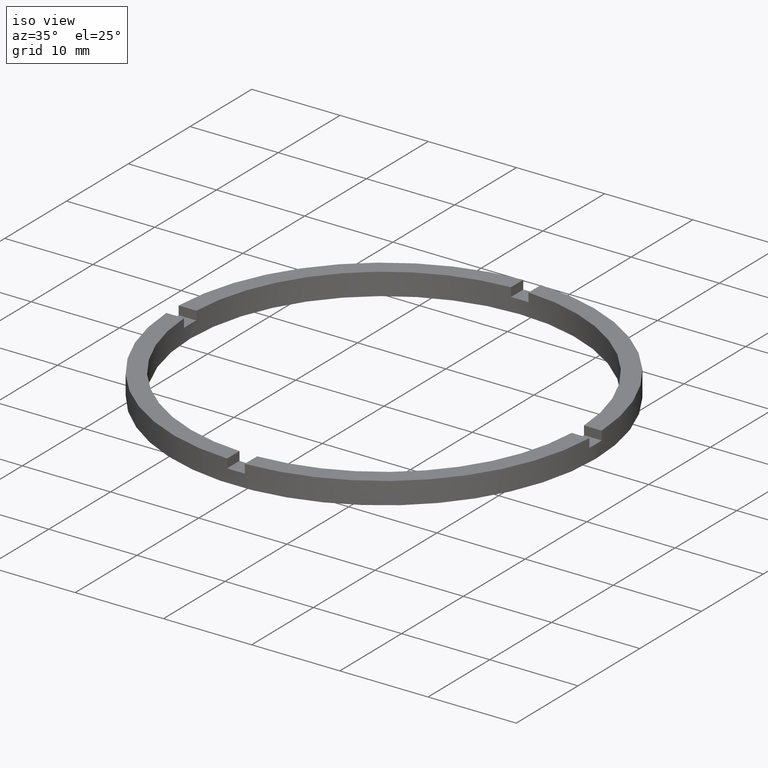
[diagram: clean part render]
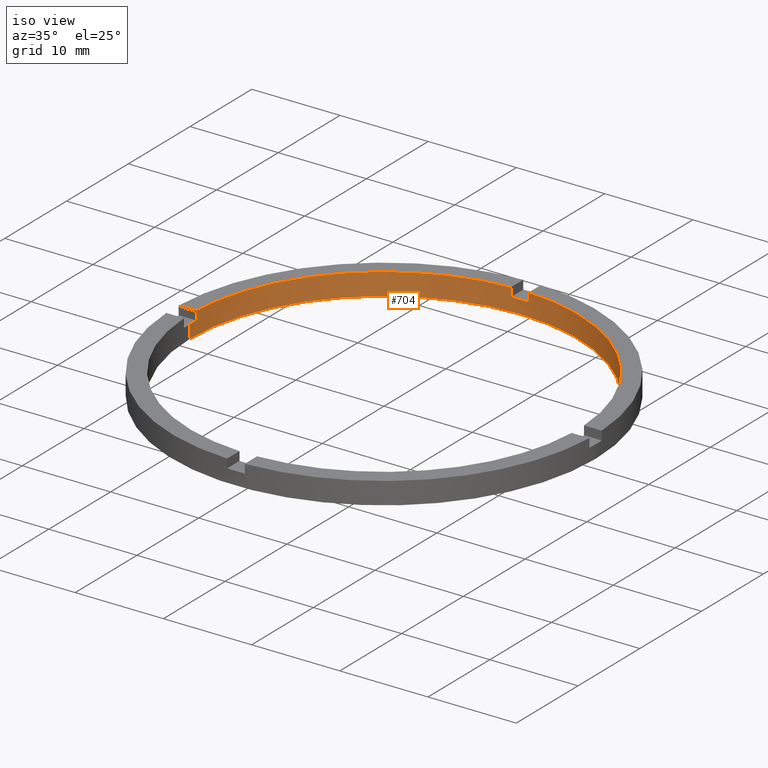
[diagram: same view with one face highlighted and labeled with its STEP entity id]
A machine part, iso view. The second image highlights one B-rep face of the part: STEP entity #704.
In plain terms, the highlighted cylindrical surface (partial cylindrical patch) has radius 22 mm, axis along (-0, -0, -1).
Its self-contained STEP definition (entity closure, byte-faithful):
#27 = CARTESIAN_POINT ( 'NONE',  ( -1.000000000000025535, 21.97726097583590388, 2.500000000000000000 ) ) ;
#29 = ORIENTED_EDGE ( 'NONE', *, *, #466, .F. ) ;
#30 = CARTESIAN_POINT ( 'NONE',  ( -21.97726097583591098, 0.9999999999999744649, 2.500000000000000000 ) ) ;
#31 = EDGE_CURVE ( 'NONE', #273, #410, #32, .T. ) ;
#32 = CIRCLE ( 'NONE', #208, 22.00000000000000000 ) ;
#33 = ORIENTED_EDGE ( 'NONE', *, *, #119, .T. ) ;
#56 = CIRCLE ( 'NONE', #388, 22.00000000000000000 ) ;
#74 = DIRECTION ( 'NONE',  ( 0.000000000000000000, 0.000000000000000000, 1.000000000000000000 ) ) ;
#77 = LINE ( 'NONE', #654, #333 ) ;
#88 = VECTOR ( 'NONE', #149, 1000.000000000000000 ) ;
#94 = EDGE_CURVE ( 'NONE', #395, #410, #299, .T. ) ;
#109 = LINE ( 'NONE', #323, #363 ) ;
#113 = LINE ( 'NONE', #159, #642 ) ;
#116 = DIRECTION ( 'NONE',  ( 0.000000000000000000, 0.000000000000000000, 1.000000000000000000 ) ) ;
#119 = EDGE_CURVE ( 'NONE', #140, #327, #573, .T. ) ;
#128 = EDGE_CURVE ( 'NONE', #321, #567, #56, .T. ) ;
#132 = VERTEX_POINT ( 'NONE', #408 ) ;
#137 = ORIENTED_EDGE ( 'NONE', *, *, #31, .T. ) ;
#140 = VERTEX_POINT ( 'NONE', #420 ) ;
#141 = ORIENTED_EDGE ( 'NONE', *, *, #613, .T. ) ;
#147 = CARTESIAN_POINT ( 'NONE',  ( 22.00000000000000000, 2.694222958124176809E-15, 1.500000000000000000 ) ) ;
#149 = DIRECTION ( 'NONE',  ( -0.000000000000000000, -0.000000000000000000, -1.000000000000000000 ) ) ;
#157 = DIRECTION ( 'NONE',  ( 1.000000000000000000, 0.000000000000000000, 0.000000000000000000 ) ) ;
#159 = CARTESIAN_POINT ( 'NONE',  ( -22.00000000000000000, 0.000000000000000000, 2.500000000000000000 ) ) ;
#169 = VERTEX_POINT ( 'NONE', #539 ) ;
#190 = CARTESIAN_POINT ( 'NONE',  ( -1.000000000000025535, 21.97726097583590388, 1.500000000000000000 ) ) ;
#197 = CARTESIAN_POINT ( 'NONE',  ( 21.97726097583591809, 0.9999999999998421263, 1.500000000000000000 ) ) ;
#198 = DIRECTION ( 'NONE',  ( 0.000000000000000000, 0.000000000000000000, 1.000000000000000000 ) ) ;
#205 = DIRECTION ( 'NONE',  ( 1.000000000000000000, 0.000000000000000000, 0.000000000000000000 ) ) ;
#208 = AXIS2_PLACEMENT_3D ( 'NONE', #778, #444, #281 ) ;
#211 = DIRECTION ( 'NONE',  ( 0.000000000000000000, -0.000000000000000000, 1.000000000000000000 ) ) ;
#244 = ORIENTED_EDGE ( 'NONE', *, *, #446, .F. ) ;
#249 = AXIS2_PLACEMENT_3D ( 'NONE', #498, #211, #157 ) ;
#267 = CARTESIAN_POINT ( 'NONE',  ( 0.000000000000000000, 0.000000000000000000, 2.500000000000000000 ) ) ;
#273 = VERTEX_POINT ( 'NONE', #27 ) ;
#281 = DIRECTION ( 'NONE',  ( 1.000000000000000000, 0.000000000000000000, 0.000000000000000000 ) ) ;
#286 = CARTESIAN_POINT ( 'NONE',  ( 0.000000000000000000, 0.000000000000000000, 1.500000000000000000 ) ) ;
#298 = CARTESIAN_POINT ( 'NONE',  ( 0.000000000000000000, 0.000000000000000000, 2.500000000000000000 ) ) ;
#299 = LINE ( 'NONE', #30, #310 ) ;
#309 = ORIENTED_EDGE ( 'NONE', *, *, #731, .T. ) ;
#310 = VECTOR ( 'NONE', #405, 1000.000000000000000 ) ;
#315 = CARTESIAN_POINT ( 'NONE',  ( 0.000000000000000000, 0.000000000000000000, 0.000000000000000000 ) ) ;
#316 = ORIENTED_EDGE ( 'NONE', *, *, #94, .F. ) ;
#320 = ORIENTED_EDGE ( 'NONE', *, *, #342, .F. ) ;
#321 = VERTEX_POINT ( 'NONE', #147 ) ;
#323 = CARTESIAN_POINT ( 'NONE',  ( -1.000000000000025979, 21.97726097583590743, 2.500000000000000000 ) ) ;
#324 = ORIENTED_EDGE ( 'NONE', *, *, #595, .F. ) ;
#327 = VERTEX_POINT ( 'NONE', #190 ) ;
#333 = VECTOR ( 'NONE', #744, 1000.000000000000000 ) ;
#336 = DIRECTION ( 'NONE',  ( 1.000000000000000000, 0.000000000000000000, 0.000000000000000000 ) ) ;
#340 = LINE ( 'NONE', #769, #88 ) ;
#342 = EDGE_CURVE ( 'NONE', #321, #132, #77, .T. ) ;
#346 = ORIENTED_EDGE ( 'NONE', *, *, #678, .F. ) ;
#363 = VECTOR ( 'NONE', #653, 1000.000000000000000 ) ;
#370 = FACE_OUTER_BOUND ( 'NONE', #664, .T. ) ;
#374 = CIRCLE ( 'NONE', #612, 22.00000000000000000 ) ;
#388 = AXIS2_PLACEMENT_3D ( 'NONE', #286, #116, #205 ) ;
#395 = VERTEX_POINT ( 'NONE', #679 ) ;
#405 = DIRECTION ( 'NONE',  ( 0.000000000000000000, 0.000000000000000000, 1.000000000000000000 ) ) ;
#408 = CARTESIAN_POINT ( 'NONE',  ( 22.00000000000000000, 2.694222958124176809E-15, 0.000000000000000000 ) ) ;
#410 = VERTEX_POINT ( 'NONE', #603 ) ;
#420 = CARTESIAN_POINT ( 'NONE',  ( 0.9999999999999735767, 21.97726097583590743, 1.500000000000000000 ) ) ;
#426 = CARTESIAN_POINT ( 'NONE',  ( -22.00000000000000000, 0.000000000000000000, 1.500000000000000000 ) ) ;
#427 = VERTEX_POINT ( 'NONE', #667 ) ;
#444 = DIRECTION ( 'NONE',  ( 0.000000000000000000, 0.000000000000000000, 1.000000000000000000 ) ) ;
#446 = EDGE_CURVE ( 'NONE', #140, #169, #608, .T. ) ;
#447 = DIRECTION ( 'NONE',  ( 0.000000000000000000, 0.000000000000000000, 1.000000000000000000 ) ) ;
#466 = EDGE_CURVE ( 'NONE', #668, #567, #340, .T. ) ;
#473 = EDGE_CURVE ( 'NONE', #395, #577, #631, .T. ) ;
#475 = DIRECTION ( 'NONE',  ( -0.000000000000000000, -0.000000000000000000, -1.000000000000000000 ) ) ;
#496 = CIRCLE ( 'NONE', #510, 22.00000000000000000 ) ;
#498 = CARTESIAN_POINT ( 'NONE',  ( 0.000000000000000000, 0.000000000000000000, 1.500000000000000000 ) ) ;
#510 = AXIS2_PLACEMENT_3D ( 'NONE', #298, #74, #729 ) ;
#514 = DIRECTION ( 'NONE',  ( 1.000000000000000000, 0.000000000000000000, 0.000000000000000000 ) ) ;
#515 = AXIS2_PLACEMENT_3D ( 'NONE', #658, #447, #514 ) ;
#520 = CARTESIAN_POINT ( 'NONE',  ( 0.9999999999999740208, 21.97726097583591098, 2.500000000000000000 ) ) ;
#539 = CARTESIAN_POINT ( 'NONE',  ( 0.9999999999999735767, 21.97726097583590743, 2.500000000000000000 ) ) ;
#565 = CARTESIAN_POINT ( 'NONE',  ( 21.97726097583591809, 0.9999999999998421263, 2.500000000000000000 ) ) ;
#567 = VERTEX_POINT ( 'NONE', #197 ) ;
#573 = CIRCLE ( 'NONE', #249, 22.00000000000000000 ) ;
#577 = VERTEX_POINT ( 'NONE', #426 ) ;
#584 = ORIENTED_EDGE ( 'NONE', *, *, #473, .T. ) ;
#595 = EDGE_CURVE ( 'NONE', #132, #427, #374, .T. ) ;
#603 = CARTESIAN_POINT ( 'NONE',  ( -21.97726097583591098, 0.9999999999999744649, 2.500000000000000000 ) ) ;
#608 = LINE ( 'NONE', #520, #618 ) ;
#612 = AXIS2_PLACEMENT_3D ( 'NONE', #315, #198, #336 ) ;
#613 = EDGE_CURVE ( 'NONE', #577, #427, #113, .T. ) ;
#618 = VECTOR ( 'NONE', #720, 1000.000000000000000 ) ;
#629 = DIRECTION ( 'NONE',  ( -1.000000000000000000, 0.000000000000000000, 0.000000000000000000 ) ) ;
#631 = CIRCLE ( 'NONE', #515, 22.00000000000000000 ) ;
#642 = VECTOR ( 'NONE', #475, 1000.000000000000000 ) ;
#645 = CYLINDRICAL_SURFACE ( 'NONE', #759, 22.00000000000000000 ) ;
#653 = DIRECTION ( 'NONE',  ( -0.000000000000000000, -0.000000000000000000, -1.000000000000000000 ) ) ;
#654 = CARTESIAN_POINT ( 'NONE',  ( 22.00000000000000000, 2.694222958124176809E-15, 2.500000000000000000 ) ) ;
#658 = CARTESIAN_POINT ( 'NONE',  ( 0.000000000000000000, 0.000000000000000000, 1.500000000000000000 ) ) ;
#663 = ORIENTED_EDGE ( 'NONE', *, *, #128, .T. ) ;
#664 = EDGE_LOOP ( 'NONE', ( #320, #663, #29, #309, #244, #33, #346, #137, #316, #584, #141, #324 ) ) ;
#667 = CARTESIAN_POINT ( 'NONE',  ( -22.00000000000000000, 0.000000000000000000, 0.000000000000000000 ) ) ;
#668 = VERTEX_POINT ( 'NONE', #565 ) ;
#678 = EDGE_CURVE ( 'NONE', #273, #327, #109, .T. ) ;
#679 = CARTESIAN_POINT ( 'NONE',  ( -21.97726097583591098, 0.9999999999999744649, 1.500000000000000000 ) ) ;
#704 = ADVANCED_FACE ( 'NONE', ( #370 ), #645, .F. ) ;
#720 = DIRECTION ( 'NONE',  ( 0.000000000000000000, 0.000000000000000000, 1.000000000000000000 ) ) ;
#729 = DIRECTION ( 'NONE',  ( 1.000000000000000000, 0.000000000000000000, 0.000000000000000000 ) ) ;
#731 = EDGE_CURVE ( 'NONE', #668, #169, #496, .T. ) ;
#738 = DIRECTION ( 'NONE',  ( -0.000000000000000000, -0.000000000000000000, -1.000000000000000000 ) ) ;
#744 = DIRECTION ( 'NONE',  ( -0.000000000000000000, -0.000000000000000000, -1.000000000000000000 ) ) ;
#759 = AXIS2_PLACEMENT_3D ( 'NONE', #267, #738, #629 ) ;
#769 = CARTESIAN_POINT ( 'NONE',  ( 21.97726097583591809, 0.9999999999998421263, 2.500000000000000000 ) ) ;
#778 = CARTESIAN_POINT ( 'NONE',  ( 0.000000000000000000, 0.000000000000000000, 2.500000000000000000 ) ) ;